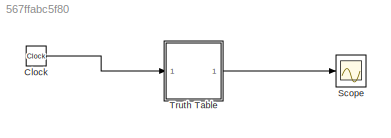
MODEL slx_567ffabc5f80
KIND model
CONFIG AbsTol = auto
CONFIG FixedStep = auto
CONFIG MaxStep = auto
CONFIG MinStep = auto
CONFIG RelTol = 1e-3
CONFIG SampleTimeConstraint = Unconstrained
CONFIG Solver = VariableStepAuto
CONFIG SolverMode = Auto
CONFIG SolverName = VariableStepAuto
CONFIG StartTime = 0.0
CONFIG StopTime = 10.0
BLOCK [Clock] Clock
BLOCK [Scope] Scope
  Ports = [1]
  ScopeSpecificationString = C++SS(StrPVP('SaveName','ScopeData'),StrPVP('LimitDataPoints','on'),StrPVP('DataFormat','Array'),StrPVP('Decimation','1'),StrPVP('BlockParamSampleInput','off'))
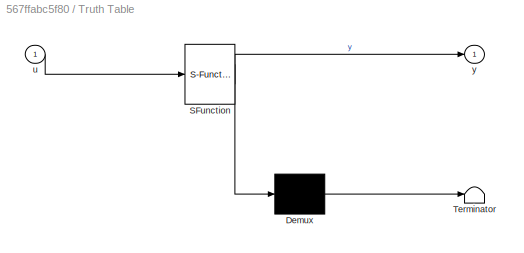
BLOCK [SubSystem] Truth Table
  ErrorFcn = Stateflow.Translate.translate
  PermitHierarchicalResolution = ExplicitOnly
  Ports = [1, 1]
  RequestExecContextInheritance = off
  SFBlockType = Truth Table
  TreatAsAtomicUnit = on
  Variant = off
BLOCK [Demux] Truth Table/ Demux 
  Outputs = 1
  Ports = [1, 1]
BLOCK [S-Function] Truth Table/ SFunction 
  EnableBusSupport = off
  FunctionName = sf_sfun
  PortCounts = [1 2]
  Ports = [1, 2]
  SFunctionDeploymentMode = off
  Tag = Stateflow S-Function TruthTable 2
BLOCK [Terminator] Truth Table/ Terminator 
BLOCK [Inport] Truth Table/u
  IconDisplay = Port number
BLOCK [Outport] Truth Table/y
  IconDisplay = Port number
LINE Clock:1 -> Truth Table:1
LINE Truth Table:1 -> Scope:1
CHART Truth Table states=1 transitions=1
  STATE_LABEL 'tt_blk_kernel'
  STATE_LABEL 'SCRIPT:\nfunction y = fcn(u)\n\naVarTruthTableCondition_1 = false;\naVarTruthTableCondition_2 = false;\n\n\n% Example condition 1\n\naVarTruthTableCondition_1 = logical(u >= 0);\n\n% Example condition 2\n\naVarTruthTableCondition_2 = logical(u ^ 2 <= 1);\n\nif (aVarTruthTableCondition_1 && aVarTruthTableCondition_2)\n    aFcnTruthTableAction_1();\nelseif (~aVarTruthTableCondition_1 && ~aVarTruthTableCondition_2)\n ...<+295ch>'
